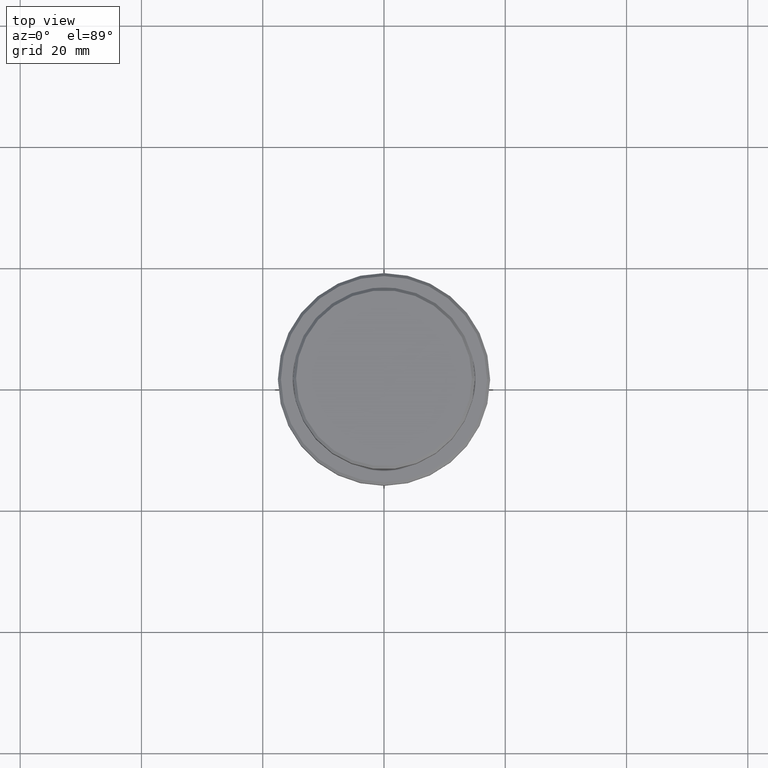
[diagram: clean part render]
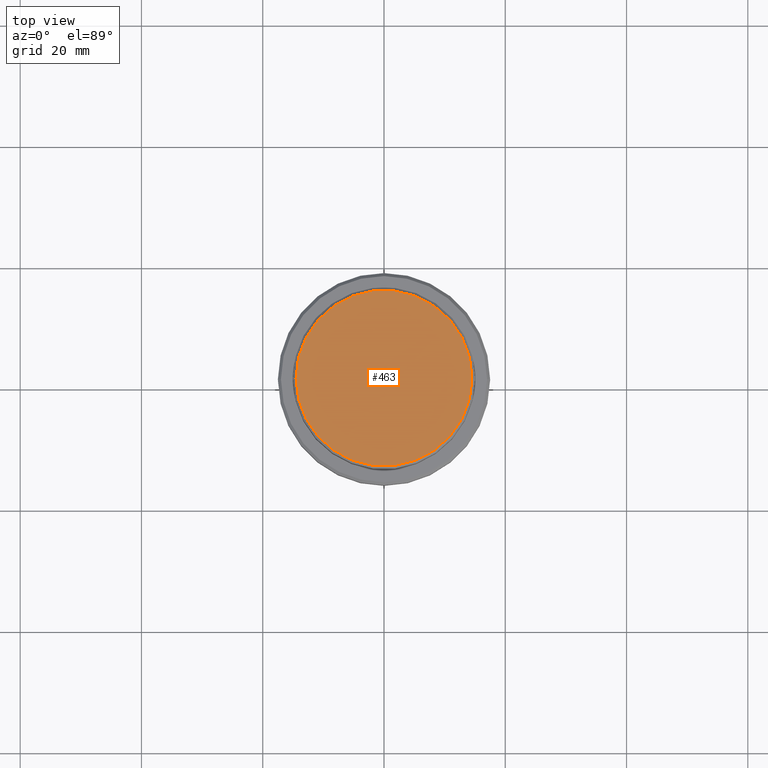
[diagram: same view with one face highlighted and labeled with its STEP entity id]
A machine part, top view. The second image highlights one B-rep face of the part: STEP entity #463.
In plain terms, the highlighted planar face has unit normal (0, -0, 1).
Its self-contained STEP definition (entity closure, byte-faithful):
#37 = DIRECTION ( 'NONE',  ( 1.000000000000000000, 0.000000000000000000, 0.000000000000000000 ) ) ;
#54 = CARTESIAN_POINT ( 'NONE',  ( 0.000000000000000000, 0.000000000000000000, 0.000000000000000000 ) ) ;
#223 = DIRECTION ( 'NONE',  ( 1.000000000000000000, 0.000000000000000000, 0.000000000000000000 ) ) ;
#265 = FACE_OUTER_BOUND ( 'NONE', #1056, .T. ) ;
#274 = VERTEX_POINT ( 'NONE', #941 ) ;
#343 = CARTESIAN_POINT ( 'NONE',  ( 0.000000000000000000, 0.000000000000000000, 0.000000000000000000 ) ) ;
#408 = AXIS2_PLACEMENT_3D ( 'NONE', #1097, #891, #223 ) ;
#427 = DIRECTION ( 'NONE',  ( 1.000000000000000000, 0.000000000000000000, 0.000000000000000000 ) ) ;
#463 = ADVANCED_FACE ( 'NONE', ( #265 ), #687, .T. ) ;
#533 = DIRECTION ( 'NONE',  ( -0.000000000000000000, -0.000000000000000000, 1.000000000000000000 ) ) ;
#580 = VERTEX_POINT ( 'NONE', #586 ) ;
#586 = CARTESIAN_POINT ( 'NONE',  ( -14.50000000000002487, 0.000000000000000000, 0.000000000000000000 ) ) ;
#687 = PLANE ( 'NONE',  #880 ) ;
#802 = EDGE_CURVE ( 'NONE', #274, #580, #1106, .T. ) ;
#865 = CIRCLE ( 'NONE', #1175, 14.50000000000002487 ) ;
#880 = AXIS2_PLACEMENT_3D ( 'NONE', #54, #929, #37 ) ;
#891 = DIRECTION ( 'NONE',  ( -0.000000000000000000, -0.000000000000000000, 1.000000000000000000 ) ) ;
#929 = DIRECTION ( 'NONE',  ( 0.000000000000000000, -0.000000000000000000, 1.000000000000000000 ) ) ;
#941 = CARTESIAN_POINT ( 'NONE',  ( 14.50000000000002487, 1.806354028742347380E-15, 0.000000000000000000 ) ) ;
#1056 = EDGE_LOOP ( 'NONE', ( #1263, #1344 ) ) ;
#1097 = CARTESIAN_POINT ( 'NONE',  ( 0.000000000000000000, 0.000000000000000000, 0.000000000000000000 ) ) ;
#1106 = CIRCLE ( 'NONE', #408, 14.50000000000002487 ) ;
#1168 = EDGE_CURVE ( 'NONE', #580, #274, #865, .T. ) ;
#1175 = AXIS2_PLACEMENT_3D ( 'NONE', #343, #533, #427 ) ;
#1263 = ORIENTED_EDGE ( 'NONE', *, *, #1168, .T. ) ;
#1344 = ORIENTED_EDGE ( 'NONE', *, *, #802, .T. ) ;